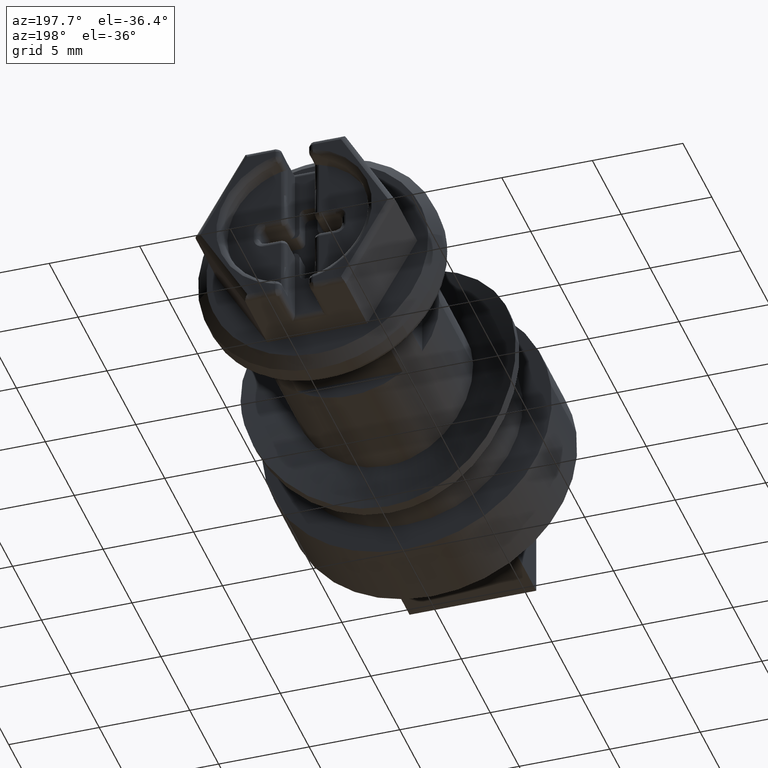
[diagram: clean part render]
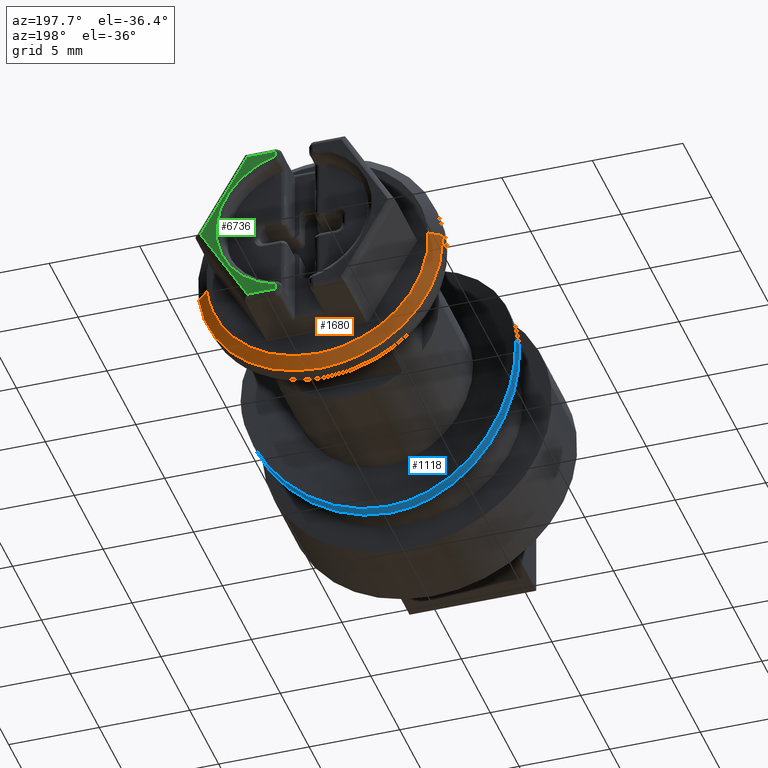
[diagram: same view with three faces highlighted in distinct colors, each labeled with its STEP entity id]
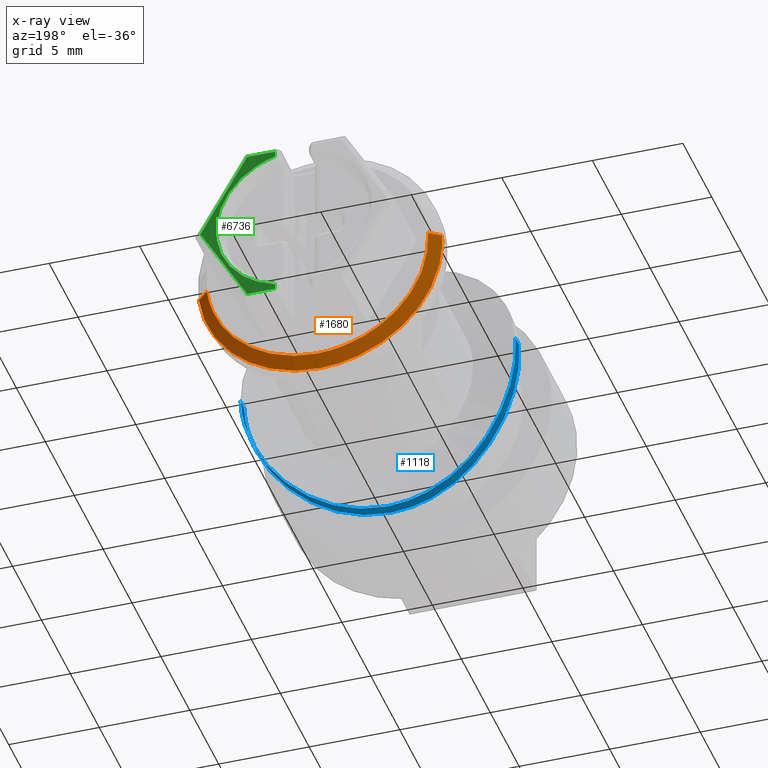
[diagram: x-ray of the same camera — body ghosted, the three highlighted faces saturated]
A machine part, auxiliary view with three faces highlighted in distinct colors.
The next image is the same camera in x-ray (body ghosted, the three faces saturated) — at least one of them is partly hidden behind the body in this view.
Their STEP definitions:

[orange] entity #1680 — the highlighted face is a freeform B-spline surface patch.
#1331=CARTESIAN_POINT('',(-4.569047660199598,19.450001114560301,-4.968531696158557));
#1332=VERTEX_POINT('',#1331);
#1333=CARTESIAN_POINT('',(0.0,19.450001114560301,-6.750000272583099));
#1334=VERTEX_POINT('',#1333);
#1335=CARTESIAN_POINT('',(-4.569047660199598,19.450001114560301,-4.968531696158558));
#1336=CARTESIAN_POINT('',(-2.631820141008990,19.450001114560305,-6.750000272583099));
#1337=CARTESIAN_POINT('',(0.0,19.450001114560301,-6.750000272583099));
#1345=(BOUNDED_CURVE()B_SPLINE_CURVE(2,(#1335,#1336,#1337),.UNSPECIFIED.,.F.,.U.)B_SPLINE_CURVE_WITH_KNOTS((3,3),(0.881317243990834,1.0),.UNSPECIFIED.)CURVE()GEOMETRIC_REPRESENTATION_ITEM()RATIONAL_B_SPLINE_CURVE((0.853927427620877,0.860954502299294,1.0))REPRESENTATION_ITEM(''));
#1346=EDGE_CURVE('',#1332,#1334,#1345,.T.);
#1348=CARTESIAN_POINT('',(6.702814589529110,19.450001114556780,-0.796731102021335));
#1349=VERTEX_POINT('',#1348);
#1350=CARTESIAN_POINT('',(0.0,19.450001114560301,-6.750000272583099));
#1351=CARTESIAN_POINT('',(5.995178306433070,19.450001114560308,-6.750000272583097));
#1352=CARTESIAN_POINT('',(6.702814589529110,19.450001114556773,-0.796731102021335));
#1360=(BOUNDED_CURVE()B_SPLINE_CURVE(2,(#1350,#1351,#1352),.UNSPECIFIED.,.F.,.U.)B_SPLINE_CURVE_WITH_KNOTS((3,3),(0.0,0.229562473514018),.UNSPECIFIED.)CURVE()GEOMETRIC_REPRESENTATION_ITEM()RATIONAL_B_SPLINE_CURVE((1.0,0.731050832854806,0.956026754184698))REPRESENTATION_ITEM(''));
#1361=EDGE_CURVE('',#1334,#1349,#1360,.T.);
#1380=CARTESIAN_POINT('',(-6.737410177400719,19.450001114560159,0.412077675487819));
#1381=VERTEX_POINT('',#1380);
#1395=CARTESIAN_POINT('',(-6.749743279484671,19.450001114560230,-0.058902929866858));
#1396=VERTEX_POINT('',#1395);
#1397=CARTESIAN_POINT('',(-6.737410177400719,19.450001114560155,0.412077675487819));
#1398=CARTESIAN_POINT('',(-6.750000288591301,19.450001114560305,0.206231177092187));
#1399=CARTESIAN_POINT('',(-6.750000288591300,19.450001114560301,0.000000016008201));
#1400=CARTESIAN_POINT('',(-6.750000288591300,19.450001114560305,-0.029452017628627));
#1401=CARTESIAN_POINT('',(-6.749743279484671,19.450001114560234,-0.058902929866858));
#1409=(BOUNDED_CURVE()B_SPLINE_CURVE(2,(#1397,#1398,#1399,#1400,#1401),.UNSPECIFIED.,.F.,.U.)B_SPLINE_CURVE_WITH_KNOTS((3,2,3),(0.739332962241904,0.750000000000000,0.751539863769597),.UNSPECIFIED.)CURVE()GEOMETRIC_REPRESENTATION_ITEM()RATIONAL_B_SPLINE_CURVE((0.976072041673065,0.987502787903307,1.0,0.998195937375954,0.996414098837290))REPRESENTATION_ITEM(''));
#1410=EDGE_CURVE('',#1381,#1396,#1409,.T.);
#1522=CARTESIAN_POINT('',(-6.749743279484671,19.450001114560237,-0.058902929866858));
#1523=CARTESIAN_POINT('',(-6.724193586236348,19.450001114560305,-2.986666010889159));
#1524=CARTESIAN_POINT('',(-4.569047660199598,19.450001114560301,-4.968531696158558));
#1532=(BOUNDED_CURVE()B_SPLINE_CURVE(2,(#1522,#1523,#1524),.UNSPECIFIED.,.F.,.U.)B_SPLINE_CURVE_WITH_KNOTS((3,3),(0.751539863769597,0.881317243990834),.UNSPECIFIED.)CURVE()GEOMETRIC_REPRESENTATION_ITEM()RATIONAL_B_SPLINE_CURVE((0.996414098837290,0.846243452517419,0.853927427620877))REPRESENTATION_ITEM(''));
#1533=EDGE_CURVE('',#1396,#1332,#1532,.T.);
#1576=CARTESIAN_POINT('',(6.094596225742974,19.950001138303119,-0.724435129881854));
#1577=VERTEX_POINT('',#1576);
#1578=CARTESIAN_POINT('',(6.094596225742974,19.950001138303119,-0.724435129881854));
#1579=CARTESIAN_POINT('',(6.702814589529110,19.450001114556780,-0.796731102021335));
#1580=QUASI_UNIFORM_CURVE('',1,(#1578,#1579),.UNSPECIFIED.,.F.,.U.);
#1581=EDGE_CURVE('',#1577,#1349,#1580,.T.);
#1600=CARTESIAN_POINT('',(-6.126052584333744,19.950001138302682,0.374685443301269));
#1601=VERTEX_POINT('',#1600);
#1615=CARTESIAN_POINT('',(-6.126052584333744,19.950001138302682,0.374685443301269));
#1616=CARTESIAN_POINT('',(-6.737410177400719,19.450001114560159,0.412077675487819));
#1617=QUASI_UNIFORM_CURVE('',1,(#1615,#1616),.UNSPECIFIED.,.F.,.U.);
#1618=EDGE_CURVE('',#1601,#1381,#1617,.T.);
#1624=CARTESIAN_POINT('',(-6.110768644502615,19.962501138902720,0.373750637439405));
#1625=CARTESIAN_POINT('',(-6.484519265933821,19.962501138902716,-5.737018007063209));
#1626=CARTESIAN_POINT('',(-0.373750621431204,19.962501138902720,-6.110768628494414));
#1627=CARTESIAN_POINT('',(5.396974768442647,19.962501138902720,-6.463721313508025));
#1628=CARTESIAN_POINT('',(6.079390766647526,19.962501138902727,-0.722627730523416));
#1629=CARTESIAN_POINT('',(-6.753076215723074,19.437188613951740,0.413035851437742));
#1630=CARTESIAN_POINT('',(-7.166112051152616,19.437188613951744,-6.340040364285331));
#1631=CARTESIAN_POINT('',(-0.413035835429541,19.437188613951740,-6.753076199714873));
#1632=CARTESIAN_POINT('',(5.964254918800663,19.437188613951740,-7.143128011705052));
#1633=CARTESIAN_POINT('',(6.718400185100691,19.437188613951736,-0.798583686275201));
#1641=(BOUNDED_SURFACE()B_SPLINE_SURFACE(2,1,((#1624,#1629),(#1625,#1630),(#1626,#1631),(#1627,#1632),(#1628,#1633)),.UNSPECIFIED.,.F.,.F.,.U.)B_SPLINE_SURFACE_WITH_KNOTS((3,2,3),(2,2),(0.0,11.209771508675191,21.971152157003370),(0.0,1.0),.UNSPECIFIED.)GEOMETRIC_REPRESENTATION_ITEM()RATIONAL_B_SPLINE_SURFACE(((1.0,1.0),(0.707106781186548,0.707106781186548),(1.0,1.0),(0.718822509939086,0.718822509939086),(0.977505800795127,0.977505800795127)))REPRESENTATION_ITEM('')SURFACE());
#1642=ORIENTED_EDGE('',*,*,#1361,.F.);
#1643=ORIENTED_EDGE('',*,*,#1346,.F.);
#1644=ORIENTED_EDGE('',*,*,#1533,.F.);
#1645=ORIENTED_EDGE('',*,*,#1410,.F.);
#1646=ORIENTED_EDGE('',*,*,#1618,.F.);
#1647=CARTESIAN_POINT('',(0.0,19.950001138308998,-6.137500243491008));
#1648=VERTEX_POINT('',#1647);
#1649=CARTESIAN_POINT('',(-6.126052584333744,19.950001138302671,0.374685443301269));
#1650=CARTESIAN_POINT('',(-6.137500259499209,19.950001138309005,0.187517608737226));
#1651=CARTESIAN_POINT('',(-6.137500259499209,19.950001138308998,0.000000016008201));
#1652=CARTESIAN_POINT('',(-6.137500259499209,19.950001138309002,-6.137500243491007));
#1653=CARTESIAN_POINT('',(0.0,19.950001138308998,-6.137500243491008));
#1661=(BOUNDED_CURVE()B_SPLINE_CURVE(2,(#1649,#1650,#1651,#1652,#1653),.UNSPECIFIED.,.F.,.U.)B_SPLINE_CURVE_WITH_KNOTS((3,2,3),(0.739332962238850,0.750000000000000,1.0),.UNSPECIFIED.)CURVE()GEOMETRIC_REPRESENTATION_ITEM()RATIONAL_B_SPLINE_CURVE((0.976072041666518,0.987502787899728,1.0,0.707106781186548,1.0))REPRESENTATION_ITEM(''));
#1662=EDGE_CURVE('',#1601,#1648,#1661,.T.);
#1663=ORIENTED_EDGE('',*,*,#1662,.T.);
#1664=CARTESIAN_POINT('',(0.0,19.950001138308998,-6.137500243491008));
#1665=CARTESIAN_POINT('',(5.451171383410622,19.950001138309005,-6.137500243491007));
#1666=CARTESIAN_POINT('',(6.094596225742975,19.950001138303119,-0.724435129881854));
#1674=(BOUNDED_CURVE()B_SPLINE_CURVE(2,(#1664,#1665,#1666),.UNSPECIFIED.,.F.,.U.)B_SPLINE_CURVE_WITH_KNOTS((3,3),(0.0,0.229562473512674),.UNSPECIFIED.)CURVE()GEOMETRIC_REPRESENTATION_ITEM()RATIONAL_B_SPLINE_CURVE((1.0,0.731050832856380,0.956026754182064))REPRESENTATION_ITEM(''));
#1675=EDGE_CURVE('',#1648,#1577,#1674,.T.);
#1676=ORIENTED_EDGE('',*,*,#1675,.T.);
#1677=ORIENTED_EDGE('',*,*,#1581,.T.);
#1678=EDGE_LOOP('',(#1642,#1643,#1644,#1645,#1646,#1663,#1676,#1677));
#1679=FACE_OUTER_BOUND('',#1678,.T.);
#1680=ADVANCED_FACE('',(#1679),#1641,.T.);

[blue] entity #1118 — the highlighted face is a freeform B-spline surface patch.
#720=CARTESIAN_POINT('',(7.598279726779529,8.745566137067797,-0.161991713038660));
#721=VERTEX_POINT('',#720);
#769=CARTESIAN_POINT('',(7.598279503509403,9.399239079622944,-0.161991708320209));
#770=VERTEX_POINT('',#769);
#771=CARTESIAN_POINT('',(7.598279503509403,9.399239079622944,-0.161991708320209));
#772=CARTESIAN_POINT('',(7.598279726779529,8.745566137067797,-0.161991713038660));
#773=QUASI_UNIFORM_CURVE('',1,(#771,#772),.UNSPECIFIED.,.F.,.U.);
#774=EDGE_CURVE('',#770,#721,#773,.T.);
#826=CARTESIAN_POINT('',(-7.576573139932421,9.389697137328517,0.596289238032107));
#827=VERTEX_POINT('',#826);
#873=CARTESIAN_POINT('',(-7.576573110358712,8.736370138112154,0.596288425991713));
#874=VERTEX_POINT('',#873);
#875=CARTESIAN_POINT('',(-7.576573139932421,9.389697137328517,0.596289238032107));
#876=CARTESIAN_POINT('',(-7.576573110358712,8.736370138112154,0.596288425991713));
#877=QUASI_UNIFORM_CURVE('',1,(#875,#876),.UNSPECIFIED.,.F.,.U.);
#878=EDGE_CURVE('',#827,#874,#877,.T.);
#924=CARTESIAN_POINT('',(-7.576571736371769,9.455000009021118,0.596289127531621));
#925=CARTESIAN_POINT('',(-8.172860863903392,9.455000009021118,-6.980282608840150));
#926=CARTESIAN_POINT('',(-0.596289127531621,9.455000009021118,-7.576571736371769));
#927=CARTESIAN_POINT('',(6.980282608840150,9.455000009021118,-8.172860863903392));
#928=CARTESIAN_POINT('',(7.576571736371769,9.455000009021118,-0.596289127531621));
#929=CARTESIAN_POINT('',(7.593637275018588,9.455000009021118,-0.379450899552038));
#930=CARTESIAN_POINT('',(7.598273404417761,9.455000009021118,-0.161991579156646));
#931=CARTESIAN_POINT('',(-7.576571736371769,7.143626074876306,0.596289127531621));
#932=CARTESIAN_POINT('',(-8.172860863903392,7.143626074876306,-6.980282608840150));
#933=CARTESIAN_POINT('',(-0.596289127531621,7.143626074876306,-7.576571736371769));
#934=CARTESIAN_POINT('',(6.980282608840150,7.143626074876306,-8.172860863903392));
#935=CARTESIAN_POINT('',(7.576571736371769,7.143626074876306,-0.596289127531621));
#936=CARTESIAN_POINT('',(7.593637275018588,7.143626074876307,-0.379450899552038));
#937=CARTESIAN_POINT('',(7.598273404417761,7.143626074876308,-0.161991579156646));
#945=(BOUNDED_SURFACE()B_SPLINE_SURFACE(2,1,((#924,#931),(#925,#932),(#926,#933),(#927,#934),(#928,#935),(#929,#936),(#930,#937)),.UNSPECIFIED.,.F.,.F.,.U.)B_SPLINE_SURFACE_WITH_KNOTS((3,2,2,3),(2,2),(0.0,12.592092296142081,25.184184592284169,25.687868284129848),(0.0,2.311373934144812),.UNSPECIFIED.)GEOMETRIC_REPRESENTATION_ITEM()RATIONAL_B_SPLINE_SURFACE(((1.0,1.0),(0.707106781186548,0.707106781186548),(1.0,1.0),(0.707106781186548,0.707106781186548),(1.0,1.0),(0.988284271247462,0.988284271247462),(0.977505800795127,0.977505800795127)))REPRESENTATION_ITEM('')SURFACE());
#946=CARTESIAN_POINT('',(-5.421011E-016,7.200001048879838,-7.599999999999999));
#947=VERTEX_POINT('',#946);
#948=CARTESIAN_POINT('',(-5.421011E-016,7.200001048879838,-7.599999999999999));
#949=CARTESIAN_POINT('',(0.507562792980920,7.200001053618528,-7.599999995527434));
#950=CARTESIAN_POINT('',(1.005690644128106,7.219822311903142,-7.549672592199582));
#951=CARTESIAN_POINT('',(1.739523220442844,7.276391505936621,-7.402452203675661));
#952=CARTESIAN_POINT('',(1.981891841460653,7.299729406984786,-7.341330777355925));
#953=CARTESIAN_POINT('',(2.342043325224849,7.341144747626165,-7.231223036701850));
#954=CARTESIAN_POINT('',(2.461808327251731,7.356060169779084,-7.191329173148732));
#955=CARTESIAN_POINT('',(2.697692414043292,7.387625556726670,-7.106206429619004));
#956=CARTESIAN_POINT('',(2.814045911413158,7.404296939927348,-7.060921858213860));
#957=CARTESIAN_POINT('',(3.388092279897297,7.491736148102098,-6.821180389647009));
#958=CARTESIAN_POINT('',(3.822845392854107,7.574732831114155,-6.587188214052991));
#959=CARTESIAN_POINT('',(4.336872753782051,7.689380958503142,-6.242342428820511));
#960=CARTESIAN_POINT('',(4.438193724772064,7.712856100743386,-6.170729291462400));
#961=CARTESIAN_POINT('',(4.637840590938308,7.760759262960617,-6.022117219146625));
#962=CARTESIAN_POINT('',(4.735510937682762,7.785030500420239,-5.945601440246731));
#963=CARTESIAN_POINT('',(5.021663789932949,7.858403015368845,-5.709985015490833));
#964=CARTESIAN_POINT('',(5.203564715255157,7.908124948832113,-5.544639955249442));
#965=CARTESIAN_POINT('',(5.550222643672269,8.007843715546004,-5.197609179019625));
#966=CARTESIAN_POINT('',(5.714978748159497,8.057843231072695,-5.015923347858263));
#967=CARTESIAN_POINT('',(5.949276501155950,8.132029042206243,-4.730876403366525));
#968=CARTESIAN_POINT('',(6.025232083510953,8.156621621361655,-4.633770177490973));
#969=CARTESIAN_POINT('',(6.172806580248619,8.205355187224027,-4.435279440745481));
#970=CARTESIAN_POINT('',(6.244570238035245,8.229546123985829,-4.333676543424968));
#971=CARTESIAN_POINT('',(6.590629346155966,8.348314411315702,-3.817187202853141));
#972=CARTESIAN_POINT('',(6.823590502628749,8.435098096080759,-3.382712346516282));
#973=CARTESIAN_POINT('',(7.109032228365530,8.545457089138010,-2.698636089818739));
#974=CARTESIAN_POINT('',(7.193427320255315,8.578938965084010,-2.465177652032475));
#975=CARTESIAN_POINT('',(7.303326756933714,8.623203850514001,-2.106414530875870));
#976=CARTESIAN_POINT('',(7.337218144482226,8.636983971791933,-1.985210441508929));
#977=CARTESIAN_POINT('',(7.399056945376273,8.662296681109464,-1.740627588183383));
#978=CARTESIAN_POINT('',(7.426817932365287,8.673752190321043,-1.618025304048101));
#979=CARTESIAN_POINT('',(7.539854427613093,8.720634665317258,-1.054663234894558));
#980=CARTESIAN_POINT('',(7.588786327237635,8.741506021634478,-0.610300375813690));
#981=CARTESIAN_POINT('',(7.598279726779529,8.745566137067797,-0.161991713038660));
#982=B_SPLINE_CURVE_WITH_KNOTS('',3,(#948,#949,#950,#951,#952,#953,#954,#955,#956,#957,#958,#959,#960,#961,#962,#963,#964,#965,#966,#967,#968,#969,#970,#971,#972,#973,#974,#975,#976,#977,#978,#979,#980,#981),.UNSPECIFIED.,.F.,.U.,(4,2,2,2,2,2,2,2,2,2,2,2,2,2,2,2,4),(0.0,0.031250000000000,0.046875000000000,0.054687500000000,0.062500000000000,0.093750000000000,0.101562500000001,0.109375000000001,0.125000000000001,0.140625000000001,0.148437500000001,0.156250000000001,0.187500000000001,0.203125000000001,0.210937500000001,0.218750000000001,0.246746620324587),.UNSPECIFIED.);
#983=EDGE_CURVE('',#947,#721,#982,.T.);
#984=ORIENTED_EDGE('',*,*,#983,.F.);
#985=CARTESIAN_POINT('',(-7.576573110358712,8.736370138112154,0.596288425991713));
#986=CARTESIAN_POINT('',(-7.592349828783685,8.743040479106639,0.395890636713040));
#987=CARTESIAN_POINT('',(-7.600084680181557,8.746333871529293,0.196030823131867));
#988=CARTESIAN_POINT('',(-7.599780214121745,8.746204705830763,-0.504344960382441));
#989=CARTESIAN_POINT('',(-7.550503934469560,8.725045606477613,-1.002092325823915));
#990=CARTESIAN_POINT('',(-7.426377432388474,8.673565983065634,-1.620122543389873));
#991=CARTESIAN_POINT('',(-7.398340941524645,8.661998385054906,-1.743658198519812));
#992=CARTESIAN_POINT('',(-7.336615654143218,8.636734885761101,-1.987426455279516));
#993=CARTESIAN_POINT('',(-7.302864556523807,8.623012985146540,-2.108016234497288));
#994=CARTESIAN_POINT('',(-7.193128149422101,8.578816811837815,-2.466010006899877));
#995=CARTESIAN_POINT('',(-7.108681950672737,8.545313764472624,-2.699647385118209));
#996=CARTESIAN_POINT('',(-6.917618671844841,8.471452992747182,-3.157215260304567));
#997=CARTESIAN_POINT('',(-6.811001481878514,8.431093819942131,-3.381145495872916));
#998=CARTESIAN_POINT('',(-6.634215820101758,8.366301135362871,-3.709803804388992));
#999=CARTESIAN_POINT('',(-6.572299480385722,8.343933848153771,-3.818424659792699));
#1000=CARTESIAN_POINT('',(-6.443714194321150,8.298277359493186,-4.031629364180208));
#1001=CARTESIAN_POINT('',(-6.377083172071719,8.274999574687396,-4.136190804495223));
#1002=CARTESIAN_POINT('',(-6.032443212758187,8.156836455141011,-4.649085630768418));
#1003=CARTESIAN_POINT('',(-5.720353497577805,8.056671730096525,-5.028000743751072));
#1004=CARTESIAN_POINT('',(-5.284217606008151,7.931351880195172,-5.463720478980001));
#1005=CARTESIAN_POINT('',(-5.194665887570741,7.906280314477384,-5.548948502140038));
#1006=CARTESIAN_POINT('',(-5.010803137212752,7.856292780515890,-5.715525835182908));
#1007=CARTESIAN_POINT('',(-4.916497474359396,7.831383867423331,-5.796841679059109));
#1008=CARTESIAN_POINT('',(-4.629387728958592,7.757930174035581,-6.032417995999167));
#1009=CARTESIAN_POINT('',(-4.431435157506473,7.710391881171822,-6.179231925628193));
#1010=CARTESIAN_POINT('',(-4.022512043231661,7.619346682466111,-6.452900307905727));
#1011=CARTESIAN_POINT('',(-3.811541427520021,7.575837277676405,-6.579753801682360));
#1012=CARTESIAN_POINT('',(-3.376260264017674,7.493998489552925,-6.813360067211262));
#1013=CARTESIAN_POINT('',(-3.151951744292813,7.455666439760442,-6.920115263630779));
#1014=CARTESIAN_POINT('',(-2.804927100745486,7.402959881093985,-7.064565243677973));
#1015=CARTESIAN_POINT('',(-2.687401051148230,7.386187257869129,-7.110101719450625));
#1016=CARTESIAN_POINT('',(-2.451772212231178,7.354782543123200,-7.194753928490231));
#1017=CARTESIAN_POINT('',(-2.333304294764105,7.340092144659129,-7.234030318062965));
#1018=CARTESIAN_POINT('',(-1.975962053964091,7.299146152866129,-7.342859812329128));
#1019=CARTESIAN_POINT('',(-1.735153466143624,7.276014884376396,-7.403435100718915));
#1020=CARTESIAN_POINT('',(-1.248387093961977,7.238570820428883,-7.500875860783884));
#1021=CARTESIAN_POINT('',(-1.002429443227518,7.224256945863895,-7.537741625464584));
#1022=CARTESIAN_POINT('',(-0.505239197696104,7.204972665377206,-7.587301693772382));
#1023=CARTESIAN_POINT('',(-0.253781482330762,7.200001012002802,-7.600000002704404));
#1024=CARTESIAN_POINT('',(-5.421011E-016,7.200001048879838,-7.599999999999999));
#1025=B_SPLINE_CURVE_WITH_KNOTS('',3,(#985,#986,#987,#988,#989,#990,#991,#992,#993,#994,#995,#996,#997,#998,#999,#1000,#1001,#1002,#1003,#1004,#1005,#1006,#1007,#1008,#1009,#1010,#1011,#1012,#1013,#1014,#1015,#1016,#1017,#1018,#1019,#1020,#1021,#1022,#1023,#1024),.UNSPECIFIED.,.F.,.U.,(4,2,2,2,2,2,2,2,2,2,2,2,2,2,2,2,2,2,2,4),(0.737567398715673,0.750000000000000,0.781250000000000,0.789062500000000,0.796875000000000,0.812500000000000,0.828125000000000,0.835937500000000,0.843750000000000,0.875000000000000,0.882812500000000,0.890625000000000,0.906250000000000,0.921875000000000,0.937500000000000,0.945312500000000,0.953125000000000,0.968750000000000,0.984375000000000,1.0),.UNSPECIFIED.);
#1026=EDGE_CURVE('',#874,#947,#1025,.T.);
#1027=ORIENTED_EDGE('',*,*,#1026,.F.);
#1028=ORIENTED_EDGE('',*,*,#878,.F.);
#1029=CARTESIAN_POINT('',(-6.776264E-017,7.800001503590850,-7.600000000000000));
#1030=VERTEX_POINT('',#1029);
#1031=CARTESIAN_POINT('',(-7.576573139932421,9.389697137328517,0.596289238032107));
#1032=CARTESIAN_POINT('',(-7.592119310458546,9.396518741662765,0.398819643456612));
#1033=CARTESIAN_POINT('',(-7.599861117055821,9.399939779562347,0.201809030428016));
#1034=CARTESIAN_POINT('',(-7.600342803108004,9.400151972645981,-0.495815490820930));
#1035=CARTESIAN_POINT('',(-7.551624363765730,9.378432480183751,-0.993981637801050));
#1036=CARTESIAN_POINT('',(-7.440295524033910,9.330512373999721,-1.551118994942667));
#1037=CARTESIAN_POINT('',(-7.427113086932581,9.324853891340645,-1.613058217769481));
#1038=CARTESIAN_POINT('',(-7.399300797083928,9.312957456419408,-1.736177877469232));
#1039=CARTESIAN_POINT('',(-7.355384056603687,9.294232014199290,-1.919884144065469));
#1040=CARTESIAN_POINT('',(-7.304965443444654,9.272960338546767,-2.100720941130444));
#1041=CARTESIAN_POINT('',(-7.195635322515200,9.227269452935611,-2.458673672495814));
#1042=CARTESIAN_POINT('',(-7.111447050791763,9.192613849462981,-2.692356454993793));
#1043=CARTESIAN_POINT('',(-6.920838514038190,9.116175437115114,-3.150152054320276));
#1044=CARTESIAN_POINT('',(-6.814418342624790,9.074391181568181,-3.374264685460184));
#1045=CARTESIAN_POINT('',(-6.637851824863367,9.007286148498062,-3.703296427316448));
#1046=CARTESIAN_POINT('',(-6.576025831247052,8.984128670766630,-3.811996176989311));
#1047=CARTESIAN_POINT('',(-6.447885575333982,8.936956881210543,-4.024947557019867));
#1048=CARTESIAN_POINT('',(-6.381472042826778,8.912903376332592,-4.129410864015290));
#1049=CARTESIAN_POINT('',(-6.037879365729407,8.790784606537718,-4.641948319761884));
#1050=CARTESIAN_POINT('',(-5.726503624627752,8.687209117087958,-5.021001802756355));
#1051=CARTESIAN_POINT('',(-5.290836083279356,8.557521549677437,-5.457311988154266));
#1052=CARTESIAN_POINT('',(-5.201356461430533,8.531571235737568,-5.542679069843524));
#1053=CARTESIAN_POINT('',(-5.017585983620196,8.479821135556449,-5.709573691935316));
#1054=CARTESIAN_POINT('',(-4.923702890365229,8.454139291250385,-5.790717229561376));
#1055=CARTESIAN_POINT('',(-4.637493293476772,8.378298537465540,-6.026167702585739));
#1056=CARTESIAN_POINT('',(-4.440051211034342,8.329185132831361,-6.173034208631707));
#1057=CARTESIAN_POINT('',(-4.031917569284617,8.235061738004209,-6.447018510703364));
#1058=CARTESIAN_POINT('',(-3.821226175871343,8.190049123717621,-6.574135666218236));
#1059=CARTESIAN_POINT('',(-3.386211093799002,8.105320744530228,-6.808421578485626));
#1060=CARTESIAN_POINT('',(-3.161889767617476,8.065602121927682,-6.915593122934520));
#1061=CARTESIAN_POINT('',(-2.872454999582728,8.020054092734695,-7.036542969495076));
#1062=CARTESIAN_POINT('',(-2.814105141895055,8.011149405011956,-7.060081059794281));
#1063=CARTESIAN_POINT('',(-2.697203948013235,7.993874202559475,-7.105562842832193));
#1064=CARTESIAN_POINT('',(-2.521286356469623,7.968720276806704,-7.171506096391590));
#1065=CARTESIAN_POINT('',(-2.343682255257136,7.945882887156781,-7.230676248518392));
#1066=CARTESIAN_POINT('',(-1.986239668684314,7.903403389522421,-7.340092426618209));
#1067=CARTESIAN_POINT('',(-1.744970369519532,7.879342835707678,-7.401159693226423));
#1068=CARTESIAN_POINT('',(-1.256438083270398,7.840325510106038,-7.499563318581223));
#1069=CARTESIAN_POINT('',(-1.009175517905832,7.825367397699423,-7.536901073768363));
#1070=CARTESIAN_POINT('',(-0.633630117908440,7.810237460797827,-7.574585212656873));
#1071=CARTESIAN_POINT('',(-0.507671749070470,7.806412580932194,-7.584087097845815));
#1072=CARTESIAN_POINT('',(-0.254158527809325,7.801288620256175,-7.596809275098681));
#1073=CARTESIAN_POINT('',(-0.126952695503242,7.800001502367876,-7.600000000836154));
#1074=CARTESIAN_POINT('',(-6.776264E-017,7.800001503590850,-7.600000000000000));
#1075=B_SPLINE_CURVE_WITH_KNOTS('',3,(#1031,#1032,#1033,#1034,#1035,#1036,#1037,#1038,#1039,#1040,#1041,#1042,#1043,#1044,#1045,#1046,#1047,#1048,#1049,#1050,#1051,#1052,#1053,#1054,#1055,#1056,#1057,#1058,#1059,#1060,#1061,#1062,#1063,#1064,#1065,#1066,#1067,#1068,#1069,#1070,#1071,#1072,#1073,#1074),.UNSPECIFIED.,.F.,.U.,(4,2,2,2,1,2,2,2,2,2,2,2,2,2,2,2,2,1,2,2,2,2,4),(0.737740901436730,0.749999999999999,0.781249999999999,0.785156249999999,0.789062499999999,0.796874999999999,0.812500000000000,0.828125000000000,0.835937500000000,0.843750000000000,0.875000000000000,0.882812500000000,0.890625000000000,0.906250000000000,0.921875000000000,0.937500000000000,0.941406250000000,0.945312500000000,0.953125000000000,0.968750000000000,0.984375000000000,0.992187500000000,1.0),.UNSPECIFIED.);
#1076=EDGE_CURVE('',#827,#1030,#1075,.T.);
#1077=ORIENTED_EDGE('',*,*,#1076,.T.);
#1078=CARTESIAN_POINT('',(-6.776264E-017,7.800001503590850,-7.600000000000000));
#1079=CARTESIAN_POINT('',(0.507810620948846,7.800001508482759,-7.599999995689236));
#1080=CARTESIAN_POINT('',(1.006123133269097,7.820471488057640,-7.549624442058501));
#1081=CARTESIAN_POINT('',(1.740155283926567,7.878890606377147,-7.402306067268920));
#1082=CARTESIAN_POINT('',(1.982577465553473,7.902991970946297,-7.341147418181427));
#1083=CARTESIAN_POINT('',(2.342791701835321,7.945765490656896,-7.230981070568157));
#1084=CARTESIAN_POINT('',(2.462557121494208,7.961168501416162,-7.191072387928404));
#1085=CARTESIAN_POINT('',(2.698387046704004,7.993759295917333,-7.105942282566410));
#1086=CARTESIAN_POINT('',(2.814709507575834,8.010972400139803,-7.060656804266078));
#1087=CARTESIAN_POINT('',(3.388585000240859,8.101255562680725,-6.820926216815478));
#1088=CARTESIAN_POINT('',(3.823151661587732,8.186959260019142,-6.586993787630316));
#1089=CARTESIAN_POINT('',(4.336941773925829,8.305396131455609,-6.242293434883288));
#1090=CARTESIAN_POINT('',(4.438215065577309,8.329649320001487,-6.170712813096455));
#1091=CARTESIAN_POINT('',(4.637767531090927,8.379145798093822,-6.022172334242450));
#1092=CARTESIAN_POINT('',(4.735275441447720,8.404197275062920,-5.945786364663853));
#1093=CARTESIAN_POINT('',(5.021139126780850,8.479984462442101,-5.710435184658559));
#1094=CARTESIAN_POINT('',(5.202876119683662,8.531358702094121,-5.545276223648632));
#1095=CARTESIAN_POINT('',(5.549267593685133,8.634431485060652,-5.198618304388755));
#1096=CARTESIAN_POINT('',(5.713921206284263,8.686132827989738,-5.017119317412676));
#1097=CARTESIAN_POINT('',(5.948113569901523,8.762878467315460,-4.732336294653975));
#1098=CARTESIAN_POINT('',(6.024042072438964,8.788325457705906,-4.635315274145574));
#1099=CARTESIAN_POINT('',(6.171578723713140,8.838764365477498,-4.436985893497762));
#1100=CARTESIAN_POINT('',(6.243352752533895,8.863815660849252,-4.335426119800658));
#1101=CARTESIAN_POINT('',(6.589136681143585,8.986708062676291,-3.819683019907687));
#1102=CARTESIAN_POINT('',(6.822096903140161,9.076625392091765,-3.385695293947844));
#1103=CARTESIAN_POINT('',(7.107742474749058,9.191107529592427,-2.702022771152220));
#1104=CARTESIAN_POINT('',(7.192239682979657,9.225866749537653,-2.468644004625449));
#1105=CARTESIAN_POINT('',(7.302323550380189,9.271851223955963,-2.109891269380040));
#1106=CARTESIAN_POINT('',(7.336294295293209,9.286177844106806,-1.988620871551227));
#1107=CARTESIAN_POINT('',(7.398234941262038,9.312478499301720,-1.744117050243839));
#1108=CARTESIAN_POINT('',(7.426050510878293,9.324386101143309,-1.621544144465452));
#1109=CARTESIAN_POINT('',(7.539567462859712,9.373233440472745,-1.057177023910253));
#1110=CARTESIAN_POINT('',(7.588757003695524,9.395012330471969,-0.611638554059881));
#1111=CARTESIAN_POINT('',(7.598279503509403,9.399239079622944,-0.161991708320209));
#1112=B_SPLINE_CURVE_WITH_KNOTS('',3,(#1078,#1079,#1080,#1081,#1082,#1083,#1084,#1085,#1086,#1087,#1088,#1089,#1090,#1091,#1092,#1093,#1094,#1095,#1096,#1097,#1098,#1099,#1100,#1101,#1102,#1103,#1104,#1105,#1106,#1107,#1108,#1109,#1110,#1111),.UNSPECIFIED.,.F.,.U.,(4,2,2,2,2,2,2,2,2,2,2,2,2,2,2,2,4),(0.0,0.031250000000000,0.046875000000000,0.054687500000000,0.062500000000000,0.093750000000000,0.101562500000000,0.109375000000000,0.125000000000000,0.140625000000000,0.148437500000000,0.156250000000000,0.187500000000000,0.203125000000000,0.210937500000000,0.218750000000000,0.246816080053966),.UNSPECIFIED.);
#1113=EDGE_CURVE('',#1030,#770,#1112,.T.);
#1114=ORIENTED_EDGE('',*,*,#1113,.T.);
#1115=ORIENTED_EDGE('',*,*,#774,.T.);
#1116=EDGE_LOOP('',(#984,#1027,#1028,#1077,#1114,#1115));
#1117=FACE_OUTER_BOUND('',#1116,.T.);
#1118=ADVANCED_FACE('',(#1117),#945,.T.);

[green] entity #6736 — the highlighted face is a freeform B-spline surface patch.
#3161=CARTESIAN_POINT('',(1.050000035623202,23.950001328298899,4.169832121943434));
#3162=VERTEX_POINT('',#3161);
#3258=CARTESIAN_POINT('',(1.050000035623202,23.950001328298899,4.484790583174300));
#3259=VERTEX_POINT('',#3258);
#3273=CARTESIAN_POINT('',(1.050000035623202,23.950001328298899,4.169832121943434));
#3274=CARTESIAN_POINT('',(1.050000035623202,23.950001328298899,4.484790583174300));
#3275=QUASI_UNIFORM_CURVE('',1,(#3273,#3274),.UNSPECIFIED.,.F.,.U.);
#3276=EDGE_CURVE('',#3162,#3259,#3275,.T.);
#3310=CARTESIAN_POINT('',(1.050000035623202,23.950001328298899,-4.169832121943434));
#3311=VERTEX_POINT('',#3310);
#3343=CARTESIAN_POINT('',(1.050000035623202,23.950001328298899,-4.169832121943433));
#3344=CARTESIAN_POINT('',(4.300000000000000,23.950001328298896,-3.351453832704158));
#3345=CARTESIAN_POINT('',(4.300000000000000,23.950001328298899,0.0));
#3346=CARTESIAN_POINT('',(4.300000000000000,23.950001328298896,3.351453832704160));
#3347=CARTESIAN_POINT('',(1.050000035623201,23.950001328298899,4.169832121943434));
#3355=(BOUNDED_CURVE()B_SPLINE_CURVE(2,(#3343,#3344,#3345,#3346,#3347),.UNSPECIFIED.,.F.,.U.)B_SPLINE_CURVE_WITH_KNOTS((3,2,3),(0.0,0.500000000000000,1.0),.UNSPECIFIED.)CURVE()GEOMETRIC_REPRESENTATION_ITEM()RATIONAL_B_SPLINE_CURVE((1.0,0.788728741328758,1.0,0.788728741328758,1.0))REPRESENTATION_ITEM(''));
#3356=EDGE_CURVE('',#3311,#3162,#3355,.T.);
#3645=CARTESIAN_POINT('',(2.589295050454995,23.950001328298899,4.484790583174300));
#3646=VERTEX_POINT('',#3645);
#3660=CARTESIAN_POINT('',(1.050000035623202,23.950001328298899,4.484790583174300));
#3661=CARTESIAN_POINT('',(2.589295050454995,23.950001328298899,4.484790583174300));
#3662=QUASI_UNIFORM_CURVE('',1,(#3660,#3661),.UNSPECIFIED.,.F.,.U.);
#3663=EDGE_CURVE('',#3259,#3646,#3662,.T.);
#3688=CARTESIAN_POINT('',(1.050000035623202,23.950001328298899,-4.484790583174330));
#3689=VERTEX_POINT('',#3688);
#3711=CARTESIAN_POINT('',(1.050000035623202,23.950001328298899,-4.484790583174330));
#3712=CARTESIAN_POINT('',(1.050000035623202,23.950001328298899,-4.169832121943434));
#3713=QUASI_UNIFORM_CURVE('',1,(#3711,#3712),.UNSPECIFIED.,.F.,.U.);
#3714=EDGE_CURVE('',#3689,#3311,#3713,.T.);
#3883=CARTESIAN_POINT('',(5.178590100910000,23.950001328298899,-2.195566E-013));
#3884=VERTEX_POINT('',#3883);
#3898=CARTESIAN_POINT('',(2.589295050454995,23.950001328298899,4.484790583174300));
#3899=CARTESIAN_POINT('',(5.178590100910000,23.950001328298899,-2.195566E-013));
#3900=QUASI_UNIFORM_CURVE('',1,(#3898,#3899),.UNSPECIFIED.,.F.,.U.);
#3901=EDGE_CURVE('',#3646,#3884,#3900,.T.);
#4114=CARTESIAN_POINT('',(2.589295050455195,23.950001328298899,-4.484790583174330));
#4115=VERTEX_POINT('',#4114);
#4129=CARTESIAN_POINT('',(5.178590100910000,23.950001328298899,-2.195566E-013));
#4130=CARTESIAN_POINT('',(2.589295050455195,23.950001328298899,-4.484790583174330));
#4131=QUASI_UNIFORM_CURVE('',1,(#4129,#4130),.UNSPECIFIED.,.F.,.U.);
#4132=EDGE_CURVE('',#3884,#4115,#4131,.T.);
#4158=CARTESIAN_POINT('',(2.589295050455195,23.950001328298899,-4.484790583174330));
#4159=CARTESIAN_POINT('',(1.050000035623202,23.950001328298899,-4.484790583174330));
#4160=QUASI_UNIFORM_CURVE('',1,(#4158,#4159),.UNSPECIFIED.,.F.,.U.);
#4161=EDGE_CURVE('',#4115,#3689,#4160,.T.);
#6722=CARTESIAN_POINT('',(0.843777008620385,23.950001328298899,-4.932821397648686));
#6723=CARTESIAN_POINT('',(5.384813275562704,23.950001328298899,-4.932821397648686));
#6724=CARTESIAN_POINT('',(0.843777008620385,23.950001328298899,4.932821397648655));
#6725=CARTESIAN_POINT('',(5.384813275562704,23.950001328298899,4.932821397648655));
#6726=B_SPLINE_SURFACE_WITH_KNOTS('',1,1,((#6722,#6724),(#6723,#6725)),.UNSPECIFIED.,.F.,.F.,.U.,(2,2),(2,2),(0.0,4.541036266942319),(0.0,9.865642795297340),.UNSPECIFIED.);
#6727=ORIENTED_EDGE('',*,*,#4132,.T.);
#6728=ORIENTED_EDGE('',*,*,#4161,.T.);
#6729=ORIENTED_EDGE('',*,*,#3714,.T.);
#6730=ORIENTED_EDGE('',*,*,#3356,.T.);
#6731=ORIENTED_EDGE('',*,*,#3276,.T.);
#6732=ORIENTED_EDGE('',*,*,#3663,.T.);
#6733=ORIENTED_EDGE('',*,*,#3901,.T.);
#6734=EDGE_LOOP('',(#6727,#6728,#6729,#6730,#6731,#6732,#6733));
#6735=FACE_OUTER_BOUND('',#6734,.T.);
#6736=ADVANCED_FACE('',(#6735),#6726,.F.);